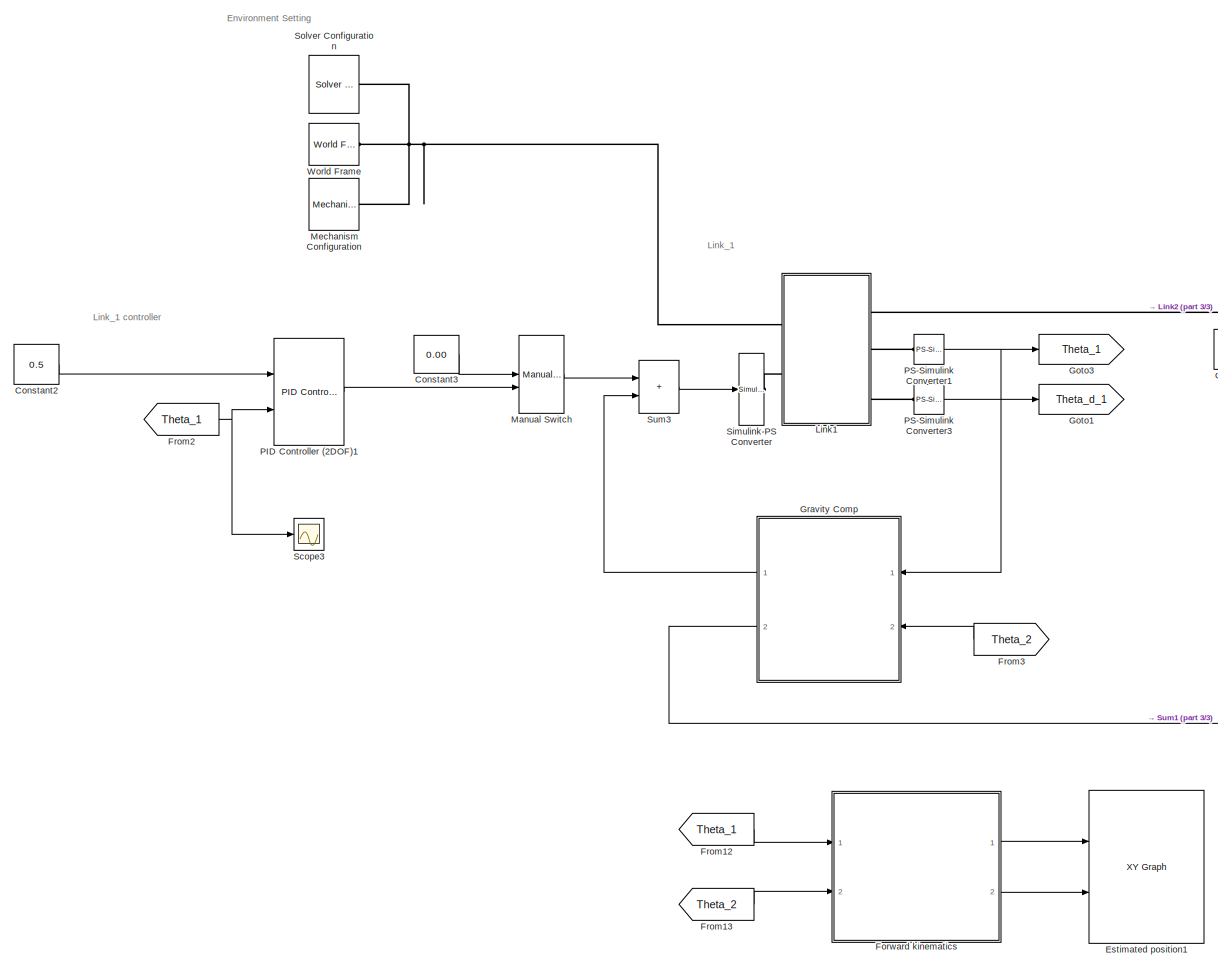
[diagram: root canvas - part 1/3, left side, full height]
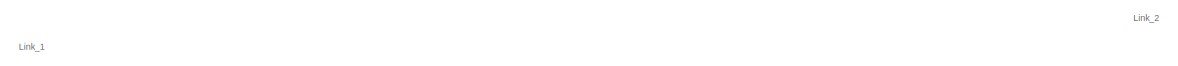
[diagram: root canvas - part 2/3, top center region]
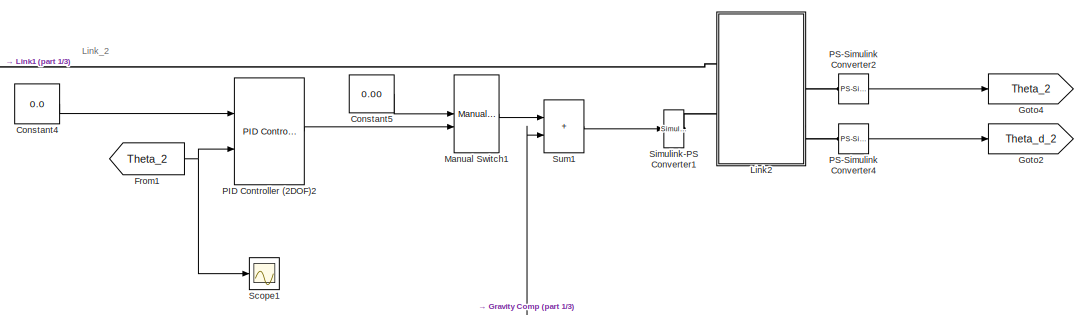
[diagram: root canvas - part 3/3, middle right region]
MODEL slx_443c5e10c6ad
KIND model
CONFIG AbsTol = auto
CONFIG EnableMultiTasking = off
CONFIG FixedStep = auto
CONFIG MaxStep = auto
CONFIG MinStep = auto
CONFIG RelTol = 1e-3
CONFIG SampleTimeConstraint = Unconstrained
CONFIG Solver = VariableStepAuto
CONFIG SolverName = VariableStepAuto
CONFIG StartTime = 0.0
CONFIG StopTime = 15
BLOCK [Constant] Constant2
  Value = 0.5
BLOCK [Constant] Constant3
  Value = 0.00
BLOCK [Constant] Constant4
  Value = 0.0
BLOCK [Constant] Constant5
  Value = 0.00
BLOCK [Reference] Estimated position1  REF=simulink/Sinks/XY Graph
  Ports = [2]
  SourceBlock = simulink/Sinks/XY Graph
  SourceType = XY scope.
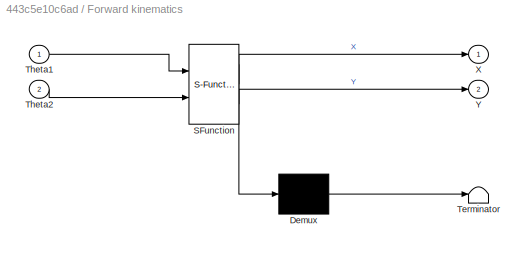
BLOCK [SubSystem] Forward kinematics
  ErrorFcn = Stateflow.Translate.translate
  PermitHierarchicalResolution = ExplicitOnly
  Ports = [2, 2]
  SFBlockType = MATLAB Function
  TreatAsAtomicUnit = on
BLOCK [Demux] Forward kinematics/ Demux 
  Outputs = 1
  Ports = [1, 1]
BLOCK [S-Function] Forward kinematics/ SFunction 
  EnableBusSupport = on
  FunctionName = sf_sfun
  PortCounts = [2 3]
  Ports = [2, 3]
  SFcnIsStateOwnerBlock = off
  SFunctionDeploymentMode = off
  Tag = Stateflow S-Function DEMO_CTRL_2DOF_GComp_2018B 3
BLOCK [Terminator] Forward kinematics/ Terminator 
BLOCK [Inport] Forward kinematics/Theta1
BLOCK [Inport] Forward kinematics/Theta2
  Port = 2
BLOCK [Outport] Forward kinematics/X
  VectorParamsAs1DForOutWhenUnconnected = off
BLOCK [Outport] Forward kinematics/Y
  Port = 2
  VectorParamsAs1DForOutWhenUnconnected = off
BLOCK [From] From1
  GotoTag = Theta_2
BLOCK [From] From12
  GotoTag = Theta_1
BLOCK [From] From13
  GotoTag = Theta_2
BLOCK [From] From2
  GotoTag = Theta_1
BLOCK [From] From3
  GotoTag = Theta_2
BLOCK [Goto] Goto1
  GotoTag = Theta_d_1
BLOCK [Goto] Goto2
  GotoTag = Theta_d_2
BLOCK [Goto] Goto3
  GotoTag = Theta_1
BLOCK [Goto] Goto4
  GotoTag = Theta_2
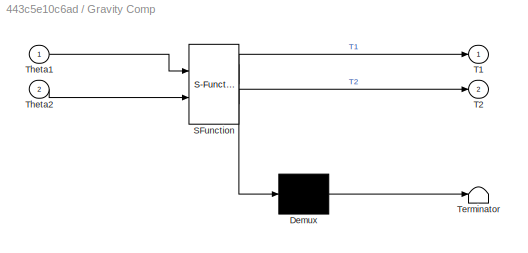
BLOCK [SubSystem] Gravity Comp
  ErrorFcn = Stateflow.Translate.translate
  PermitHierarchicalResolution = ExplicitOnly
  Ports = [2, 2]
  SFBlockType = MATLAB Function
  TreatAsAtomicUnit = on
BLOCK [Demux] Gravity Comp/ Demux 
  Outputs = 1
  Ports = [1, 1]
BLOCK [S-Function] Gravity Comp/ SFunction 
  EnableBusSupport = on
  FunctionName = sf_sfun
  PortCounts = [2 3]
  Ports = [2, 3]
  SFcnIsStateOwnerBlock = off
  SFunctionDeploymentMode = off
  Tag = Stateflow S-Function DEMO_CTRL_2DOF_GComp_2018B 2
BLOCK [Terminator] Gravity Comp/ Terminator 
BLOCK [Outport] Gravity Comp/T1
  VectorParamsAs1DForOutWhenUnconnected = off
BLOCK [Outport] Gravity Comp/T2
  Port = 2
BLOCK [Inport] Gravity Comp/Theta1
BLOCK [Inport] Gravity Comp/Theta2
  Port = 2
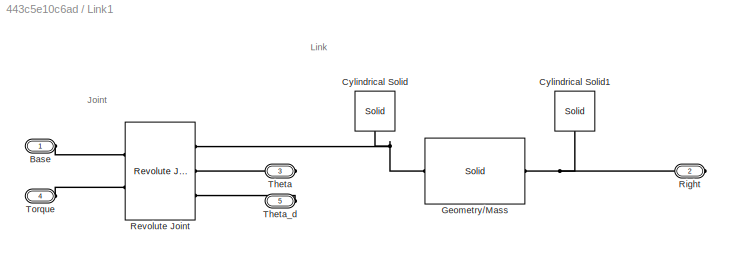
BLOCK [SubSystem] Link1
  Ports = [0, 0, 0, 0, 0, 2, 3]
BLOCK [PMIOPort] Link1/Base
  Side = Left
BLOCK [Reference] Link1/Cylindrical Solid  REF=sm_lib/Body Elements/Solid
  Ports = [0, 0, 0, 0, 0, 0, 1]
  SourceBlock = sm_lib/Body Elements/Solid
  SourceType = Cylindrical Solid
BLOCK [Reference] Link1/Cylindrical Solid1  REF=sm_lib/Body Elements/Solid
  Ports = [0, 0, 0, 0, 0, 0, 1]
  SourceBlock = sm_lib/Body Elements/Solid
  SourceType = Cylindrical Solid
BLOCK [Reference] Link1/Geometry//Mass  REF=sm_lib/Body Elements/Solid
  Ports = [0, 0, 0, 0, 0, 1, 1]
  SourceBlock = sm_lib/Body Elements/Solid
  SourceType = Brick Solid
BLOCK [Reference] Link1/Revolute Joint  REF=sm_lib/Joints/Revolute Joint
  Ports = [0, 0, 0, 0, 0, 2, 3]
  SourceBlock = sm_lib/Joints/Revolute Joint
  SourceType = Revolute Joint
BLOCK [PMIOPort] Link1/Right
  Port = 2
  Side = Right
BLOCK [PMIOPort] Link1/Theta
  Port = 3
  Side = Right
BLOCK [PMIOPort] Link1/Theta_d
  Port = 5
  Side = Right
BLOCK [PMIOPort] Link1/Torque
  Port = 4
  Side = Left
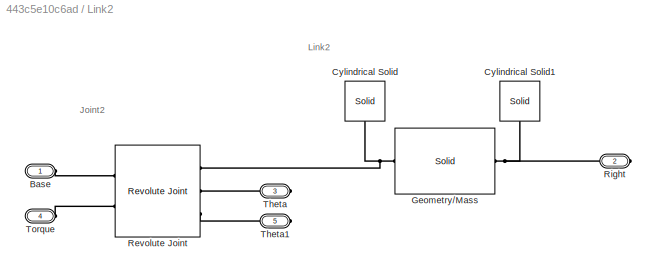
BLOCK [SubSystem] Link2
  Ports = [0, 0, 0, 0, 0, 2, 3]
BLOCK [PMIOPort] Link2/Base
  Side = Left
BLOCK [Reference] Link2/Cylindrical Solid  REF=sm_lib/Body Elements/Solid
  Ports = [0, 0, 0, 0, 0, 0, 1]
  SourceBlock = sm_lib/Body Elements/Solid
  SourceType = Cylindrical Solid
BLOCK [Reference] Link2/Cylindrical Solid1  REF=sm_lib/Body Elements/Solid
  Ports = [0, 0, 0, 0, 0, 0, 1]
  SourceBlock = sm_lib/Body Elements/Solid
  SourceType = Cylindrical Solid
BLOCK [Reference] Link2/Geometry//Mass  REF=sm_lib/Body Elements/Solid
  Ports = [0, 0, 0, 0, 0, 1, 1]
  SourceBlock = sm_lib/Body Elements/Solid
  SourceType = Brick Solid
BLOCK [Reference] Link2/Revolute Joint  REF=sm_lib/Joints/Revolute Joint
  Ports = [0, 0, 0, 0, 0, 2, 3]
  SourceBlock = sm_lib/Joints/Revolute Joint
  SourceType = Revolute Joint
BLOCK [PMIOPort] Link2/Right
  Port = 2
  Side = Right
BLOCK [PMIOPort] Link2/Theta
  Port = 3
  Side = Right
BLOCK [PMIOPort] Link2/Theta1
  Port = 5
  Side = Right
BLOCK [PMIOPort] Link2/Torque
  Port = 4
  Side = Left
BLOCK [ManualSwitch] Manual Switch
  CurrentSetting = 0
BLOCK [ManualSwitch] Manual Switch1
  CurrentSetting = 0
BLOCK [Reference] Mechanism Configuration  REF=sm_lib/Utilities/Mechanism
Configuration
  Ports = [0, 0, 0, 0, 0, 0, 1]
  SourceBlock = sm_lib/Utilities/Mechanism\nConfiguration
  SourceType = Mechanism\nConfiguration
BLOCK [Reference] PID Controller (2DOF)1  REF=simulink/Continuous/PID Controller (2DOF)
  Ports = [2, 1]
  SourceBlock = simulink/Continuous/PID Controller (2DOF)
  SourceType = PID 2dof
BLOCK [Reference] PID Controller (2DOF)2  REF=simulink/Continuous/PID Controller (2DOF)
  Ports = [2, 1]
  SourceBlock = simulink/Continuous/PID Controller (2DOF)
  SourceType = PID 2dof
BLOCK [Reference] PS-Simulink Converter1  REF=nesl_utility/PS-Simulink
Converter
  Ports = [0, 1, 0, 0, 0, 1]
  SourceBlock = nesl_utility/PS-Simulink\nConverter
  SourceType = PS-Simulink\nConverter
BLOCK [Reference] PS-Simulink Converter2  REF=nesl_utility/PS-Simulink
Converter
  Ports = [0, 1, 0, 0, 0, 1]
  SourceBlock = nesl_utility/PS-Simulink\nConverter
  SourceType = PS-Simulink\nConverter
BLOCK [Reference] PS-Simulink Converter3  REF=nesl_utility/PS-Simulink
Converter
  Ports = [0, 1, 0, 0, 0, 1]
  SourceBlock = nesl_utility/PS-Simulink\nConverter
  SourceType = PS-Simulink\nConverter
BLOCK [Reference] PS-Simulink Converter4  REF=nesl_utility/PS-Simulink
Converter
  Ports = [0, 1, 0, 0, 0, 1]
  SourceBlock = nesl_utility/PS-Simulink\nConverter
  SourceType = PS-Simulink\nConverter
BLOCK [Scope] Scope1
  Floating = off
  NumInputPorts = 1
  Ports = [1]
  ScopeSpecificationString = Simulink.scopes.TimeScopeBlockCfg('CurrentConfiguration', extmgr.ConfigurationSet(extmgr.Configuration('Core','General UI',true),extmgr.Configuration('Core','Source UI',true),extmgr.Configuration('Sources','WiredSimulink',true,'DataLoggingVariableName','ScopeData1'),extmgr.Configuration('Visuals','Time Domain',true,'SerializedDisplays',{struct('MinYLimReal','-0.0802','MaxYLimReal','0.72179','YLabe...<+1742ch>
BLOCK [Scope] Scope3
  Floating = off
  NumInputPorts = 1
  Ports = [1]
  ScopeSpecificationString = Simulink.scopes.TimeScopeBlockCfg('CurrentConfiguration', extmgr.ConfigurationSet(extmgr.Configuration('Core','General UI',true),extmgr.Configuration('Core','Source UI',true),extmgr.Configuration('Sources','WiredSimulink',true,'DataLoggingVariableName','ScopeData1'),extmgr.Configuration('Visuals','Time Domain',true,'SerializedDisplays',{struct('MinYLimReal','-0.14055','MaxYLimReal','0.81365','YLab...<+1744ch>
BLOCK [Reference] Simulink-PS Converter  REF=nesl_utility/Simulink-PS
Converter
  Ports = [1, 0, 0, 0, 0, 0, 1]
  SourceBlock = nesl_utility/Simulink-PS\nConverter
  SourceType = Simulink-PS\nConverter
BLOCK [Reference] Simulink-PS Converter1  REF=nesl_utility/Simulink-PS
Converter
  Ports = [1, 0, 0, 0, 0, 0, 1]
  SourceBlock = nesl_utility/Simulink-PS\nConverter
  SourceType = Simulink-PS\nConverter
BLOCK [Reference] Solver Configuration  REF=nesl_utility/Solver
Configuration
  Ports = [0, 0, 0, 0, 0, 0, 1]
  SourceBlock = nesl_utility/Solver\nConfiguration
  SourceType = Solver\nConfiguration
BLOCK [Sum] Sum1
  IconShape = rectangular
  Ports = [2, 1]
BLOCK [Sum] Sum3
  IconShape = rectangular
  Ports = [2, 1]
BLOCK [Reference] World Frame  REF=sm_lib/Frames and
Transforms/World Frame
  Ports = [0, 0, 0, 0, 0, 0, 1]
  SourceBlock = sm_lib/Frames and\nTransforms/World Frame
  SourceType = World Frame
ANNOTATION (root): Environment Setting
ANNOTATION (root): Link_1
ANNOTATION (root): Link_1 controller
ANNOTATION (root): Link_2
ANNOTATION Link1: Joint
ANNOTATION Link1: Link
ANNOTATION Link2: Joint2
ANNOTATION Link2: Link2
LINE Constant2:1 -> PID Controller (2DOF)1:1
LINE Constant3:1 -> Manual Switch:1
LINE Constant4:1 -> PID Controller (2DOF)2:1
LINE Constant5:1 -> Manual Switch1:1
LINE Forward kinematics:1 -> Estimated position1:1
LINE Forward kinematics:2 -> Estimated position1:2
LINE From12:1 -> Forward kinematics:1
LINE From13:1 -> Forward kinematics:2
NET From1:1 -> PID Controller (2DOF)2:2, Scope1:1
NET From2:1 -> PID Controller (2DOF)1:2, Scope3:1
LINE From3:1 -> Gravity Comp:2
LINE Gravity Comp:1 -> Sum3:2
LINE Gravity Comp:2 -> Sum1:2
LINE Manual Switch1:1 -> Sum1:1
LINE Manual Switch:1 -> Sum3:1
LINE PID Controller (2DOF)1:1 -> Manual Switch:2
LINE PID Controller (2DOF)2:1 -> Manual Switch1:2
NET PS-Simulink Converter1:1 -> Goto3:1, Gravity Comp:1
LINE PS-Simulink Converter2:1 -> Goto4:1
LINE PS-Simulink Converter3:1 -> Goto1:1
LINE PS-Simulink Converter4:1 -> Goto2:1
LINE Sum1:1 -> Simulink-PS Converter1:1
LINE Sum3:1 -> Simulink-PS Converter:1
PLINE Link1/Base:RConn1 -- Link1/Revolute Joint:LConn1
PNET net1: Link1/Cylindrical Solid1:RConn1 -- Link1/Geometry//Mass:RConn1 -- Link1/Right:RConn1
PNET net2: Link1/Cylindrical Solid:RConn1 -- Link1/Geometry//Mass:LConn1 -- Link1/Revolute Joint:RConn1
PLINE Link1/Revolute Joint:LConn2 -- Link1/Torque:RConn1
PLINE Link1/Revolute Joint:RConn2 -- Link1/Theta:RConn1
PLINE Link1/Revolute Joint:RConn3 -- Link1/Theta_d:RConn1
PNET net3: Link1:LConn1 -- Mechanism Configuration:RConn1 -- Solver Configuration:RConn1 -- World Frame:RConn1
PLINE Link1:LConn2 -- Simulink-PS Converter:RConn1
PLINE Link1:RConn1 -- Link2:LConn1
PLINE Link1:RConn2 -- PS-Simulink Converter1:LConn1
PLINE Link1:RConn3 -- PS-Simulink Converter3:LConn1
PLINE Link2/Base:RConn1 -- Link2/Revolute Joint:LConn1
PNET net4: Link2/Cylindrical Solid1:RConn1 -- Link2/Geometry//Mass:RConn1 -- Link2/Right:RConn1
PNET net5: Link2/Cylindrical Solid:RConn1 -- Link2/Geometry//Mass:LConn1 -- Link2/Revolute Joint:RConn1
PLINE Link2/Revolute Joint:LConn2 -- Link2/Torque:RConn1
PLINE Link2/Revolute Joint:RConn2 -- Link2/Theta:RConn1
PLINE Link2/Revolute Joint:RConn3 -- Link2/Theta1:RConn1
PLINE Link2:LConn2 -- Simulink-PS Converter1:RConn1
PLINE Link2:RConn2 -- PS-Simulink Converter2:LConn1
PLINE Link2:RConn3 -- PS-Simulink Converter4:LConn1
note: NET lines group one-source signal fan-out (src -> all destinations, sorted); 1:1 wires keep LINE; PNET lines group multi-terminal physical nets as a canonical sorted terminal list (undirected conserving connections); 2-terminal nets keep the pairwise PLINE form
CHART Gravity Comp states=1 transitions=1
  STATE_LABEL 'eML_blk_kernel()'
  STATE_LABEL 'SCRIPT:\nfunction [T1,T2] = GravityComp(Theta1, Theta2)\n\ng = 9.80665;\n\nm1 = 1.0;\nL1 = 0.25;\nLc1 = 0.125;\n\nm2 = 1.0;\nL2 = 0.25;\nLc2 = 0.125;\n\nT2 = m2 * g * Lc2 * cos(Theta1 + Theta2);\nT1 = T2 + (m1 * Lc1 + m2 * L1) *cos(Theta1) * g; \n\n\n\n'
CHART Forward kinematics states=1 transitions=1
  STATE_LABEL 'eML_blk_kernel()'
  STATE_LABEL 'SCRIPT:\nfunction [X, Y] = Forwardkinematics(Theta1,Theta2)\n\nl1 = 0.25; \nl2 = 0.25;\n\nT10 = [cos(Theta1), -sin(Theta1), 0, l1*cos(Theta1);\n       sin(Theta1), cos(Theta1),  0, l1*sin(Theta1);\n       0,          0,             1,      0;\n       0,          0,             0,       1];\n\nT21 = [cos(Theta2), -sin(Theta2), 0, l2*cos(Theta2);\n       sin(Theta2), cos(Theta2),  0, l2*sin(Theta2);\n       0,  ...<+130ch>'
